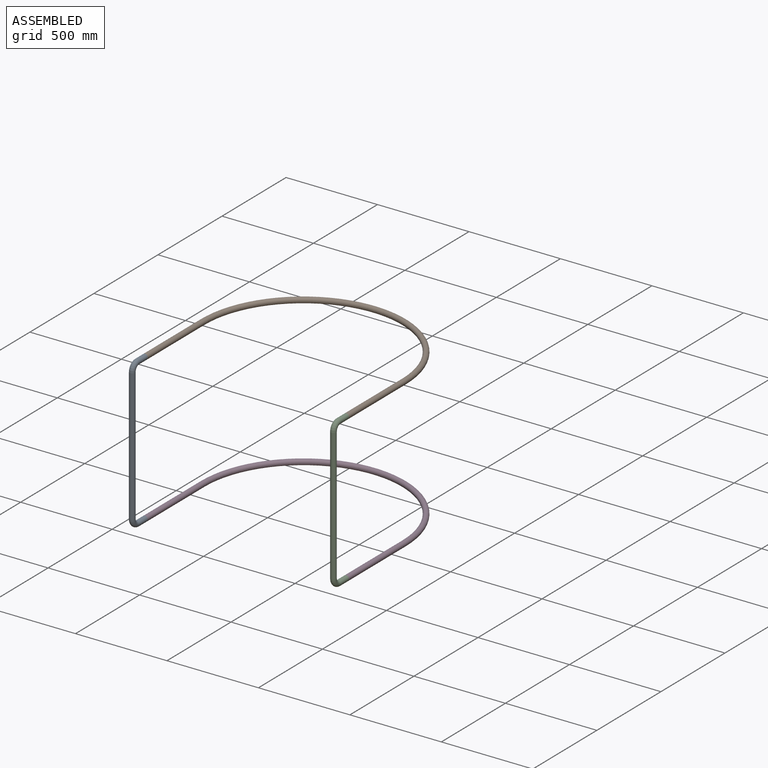
[diagram: assembled view]
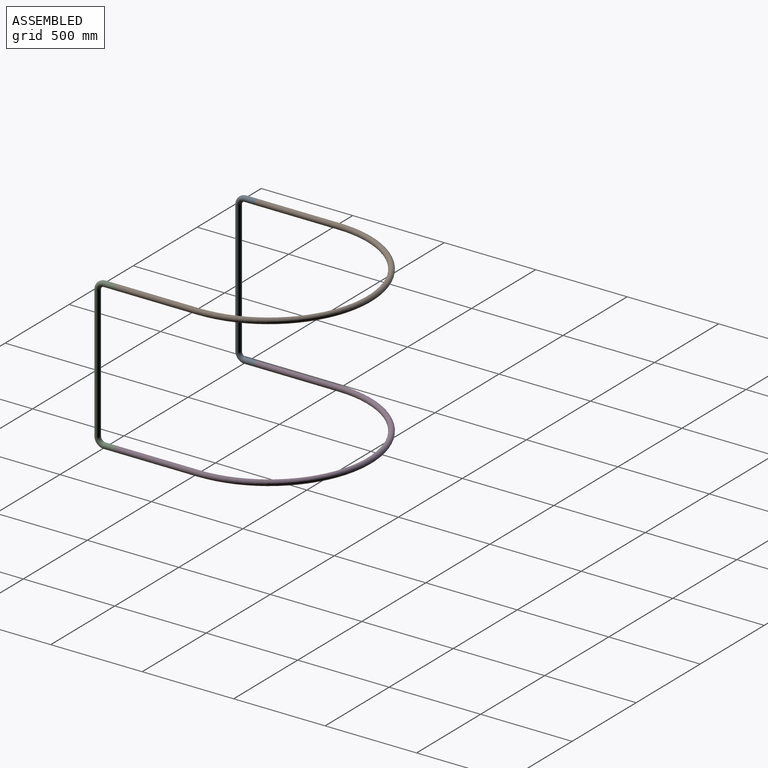
[diagram: assembled view, second angle]
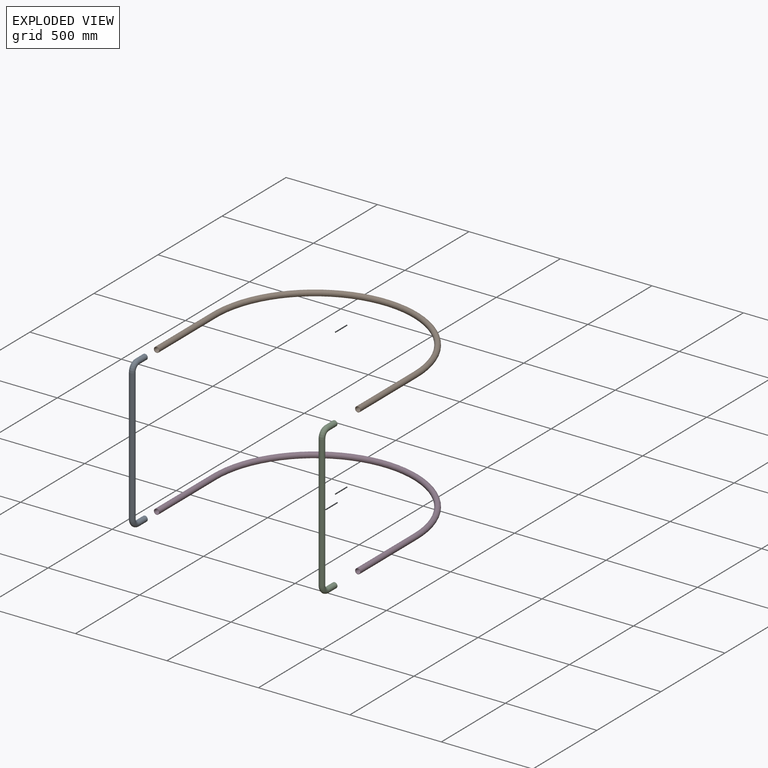
[diagram: exploded view]
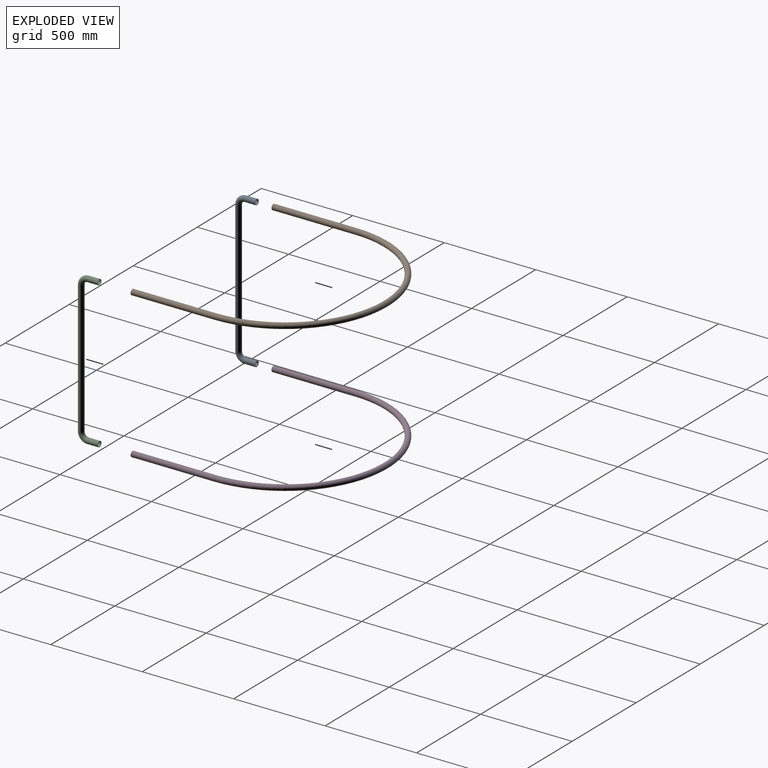
[diagram: exploded view, second angle]
ASSEMBLY  parts=4 mates=4
PART A: 12 faces, bbox 30x119.3x838.7 mm
  f0: cylinder r=13mm len=724.78mm, axis (0,0,1), area 59201.4mm2, adj f1,f7
  f1: torus R=37.61mm, axis (-1,0,0), area 4825.3mm2, adj f0,f2
  f2: cylinder r=13mm len=62.39mm, axis (0,1,0), area 5096.3mm2, adj f1,f3
  f3: plane 30x30mm, normal (0,1,0), area 175.9mm2, adj f2,f6
  f4: cylinder r=15mm len=724.78mm, axis (0,0,1), area 68309.3mm2, adj f5,f10
  f5: torus R=37.61mm, axis (-1,0,0), area 5567.6mm2, adj f4,f6
  f6: cylinder r=15mm len=62.39mm, axis (0,1,0), area 5880.3mm2, adj f3,f5
  f7: torus R=37.61mm, axis (-1,0,0), area 4825.3mm2, adj f0,f8
  f8: cylinder r=13mm len=62.39mm, axis (0,1,0), area 5096.3mm2, adj f7,f9
  f9: plane 30x30mm, normal (0,1,0), area 175.9mm2, adj f8,f11
  f10: torus R=37.61mm, axis (-1,0,0), area 5567.6mm2, adj f4,f11
  f11: cylinder r=15mm len=62.39mm, axis (0,1,0), area 5880.3mm2, adj f9,f10
PART B: 8 faces, bbox 1223.1x1061.6x30 mm
  f0: torus R=550mm, axis (0,0,1), area 141135.3mm2, adj f1,f5
  f1: cylinder r=13mm len=450mm, axis (0,-1,0), area 36756.6mm2, adj f0,f2
  f2: plane 30x30mm, normal (0,-1,0), area 175.9mm2, adj f1,f4
  f3: torus R=550mm, axis (0,0,1), area 162848.5mm2, adj f4,f7
  f4: cylinder r=15mm len=450mm, axis (0,-1,0), area 42411.5mm2, adj f2,f3
  f5: cylinder r=13mm len=450mm, axis (0,-1,0), area 36756.6mm2, adj f0,f6
  f6: plane 30x30mm, normal (0,-1,0), area 175.9mm2, adj f5,f7
  f7: cylinder r=15mm len=450mm, axis (0,-1,0), area 42411.5mm2, adj f3,f6
PART C: same geometry as A
PART D: same geometry as B
PLACE A t=(108.37,2.5,-233.41)mm
PLACE B t=(658.37,102.5,166.59)mm
PLACE C t=(1208.37,2.5,-233.41)mm
PLACE D t=(658.37,102.5,-633.41)mm
MATE fastened B.f4 <-> A.f2  axis (0,-1,0) through (108.37,102.5,166.59)mm
MATE fastened D.f4 <-> A.f8  axis (0,-1,0) through (108.37,102.5,-633.41)mm
MATE fastened D.f7 <-> C.f8  axis (0,-1,0) through (1208.37,102.5,-633.41)mm
MATE fastened C.f2 <-> B.f7  axis (0,1,0) through (1208.37,102.5,166.59)mm
